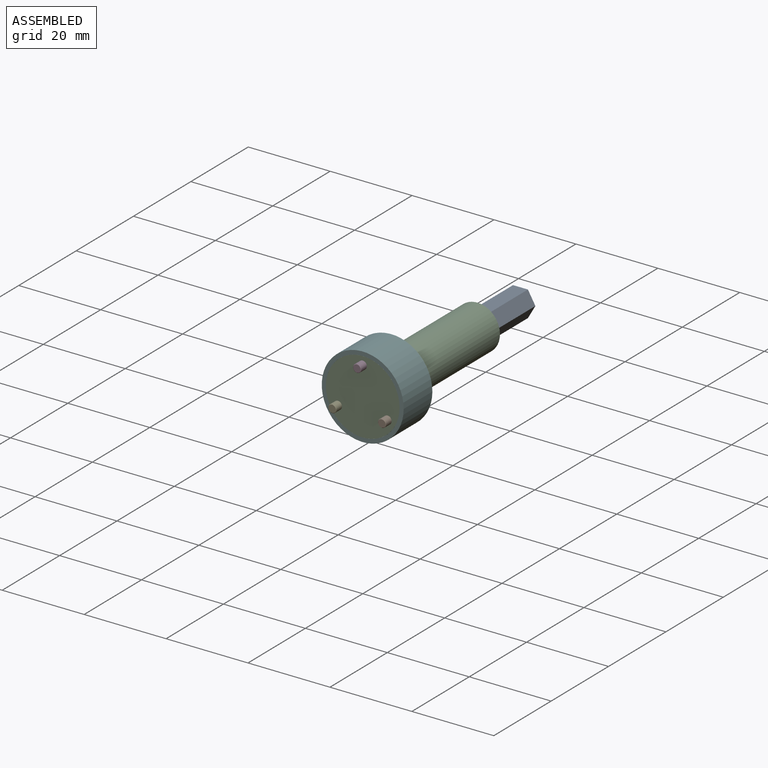
[diagram: assembled view]
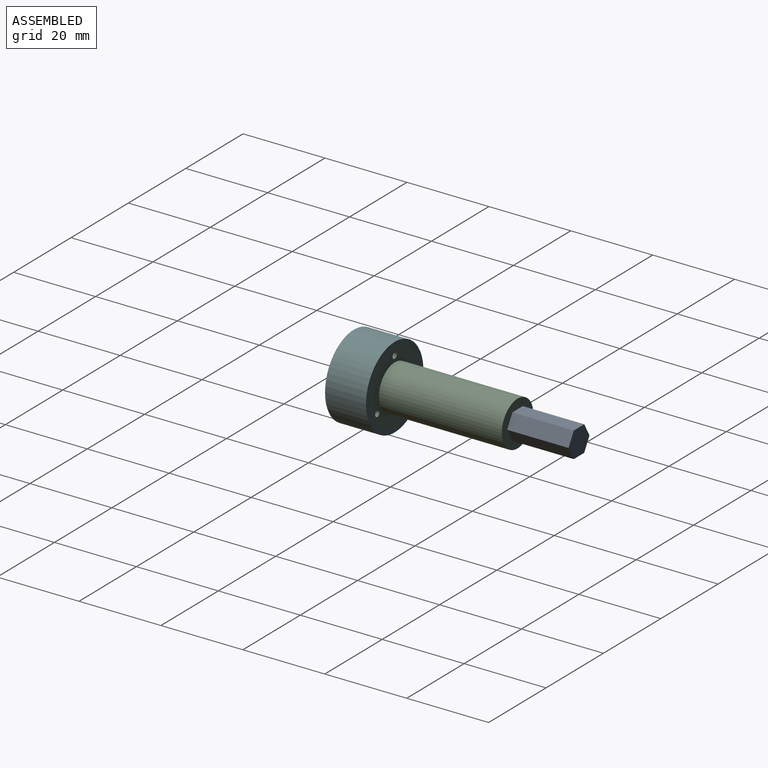
[diagram: assembled view, second angle]
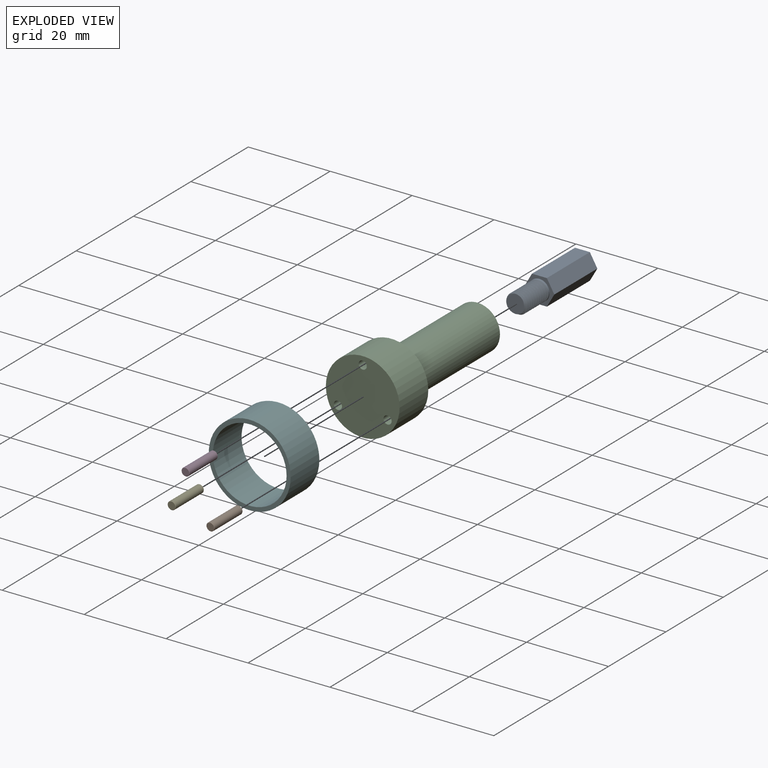
[diagram: exploded view]
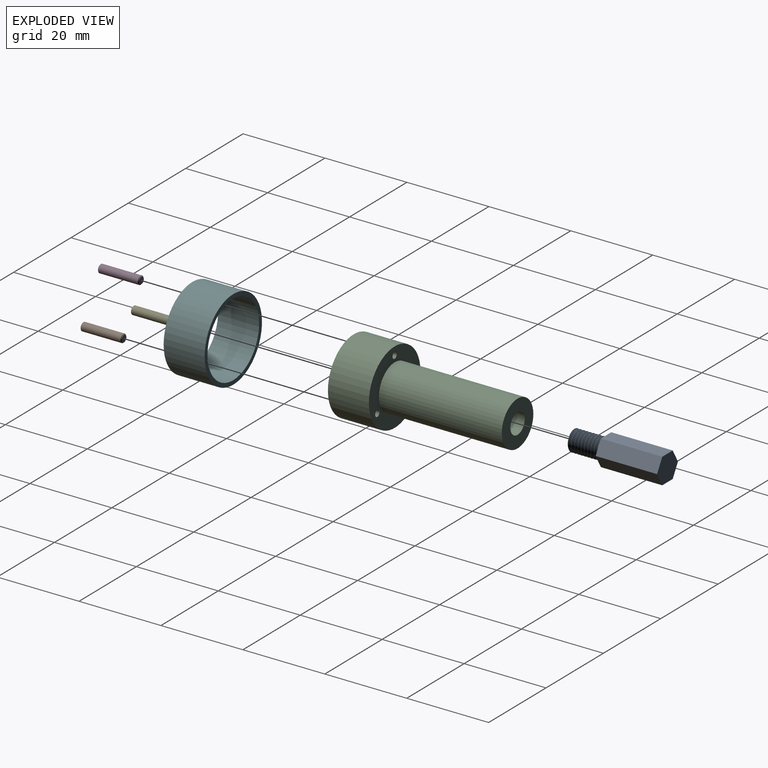
[diagram: exploded view, second angle]
ASSEMBLY  parts=6 mates=6
PART A: 13 faces, bbox 7.8x24x6.8 mm
  f0: cylinder r=2.5mm len=8mm, axis (0,1,0), area 8.5mm2, adj f7,f9,f10,f11,f12
  f1: plane 15x3.15mm, normal (0.87,0,-0.5), area 54.6mm2, adj f2,f6,f7,f8
  f2: plane 15x3.15mm, normal (0.87,0,0.5), area 54.6mm2, adj f1,f3,f7,f8
  f3: plane 15x3.64mm, normal (0,0,1), area 54.6mm2, adj f2,f4,f7,f8
  f4: plane 15x3.15mm, normal (-0.87,0,0.5), area 54.6mm2, adj f3,f5,f7,f8
  f5: plane 15x3.15mm, normal (-0.87,0,-0.5), area 54.6mm2, adj f4,f6,f7,f8
  f6: plane 15x3.64mm, normal (0,0,-1), area 54.6mm2, adj f1,f5,f7,f8
  f7: plane 7.27x6.3mm, normal (0,-1,0), area 14.7mm2, adj f0,f1,f2,f3,f4,f5,f6
  f8: plane 7.27x6.3mm, normal (0,1,0), area 34.4mm2, adj f1,f2,f3,f4,f5,f6
  f9: plane 4.94x4.92mm, normal (0,-1,0), area 15.3mm2, adj f0,f11,f12
  f10: plane 0.75x0.65mm, normal (0,0,-1), area 0.2mm2, adj f0,f11,f12
  f11: bspline ~8.38x5.77mm, area 100.2mm2, adj f0,f9,f10,f12
  f12: bspline ~8.11x5.77mm, area 95.3mm2, adj f0,f9,f10,f11
PART B: 5 faces, bbox 2x10x2 mm
  f0: cylinder r=1mm len=9.7mm, axis (0,1,0), area 60.9mm2, adj f3,f4
  f1: plane 1.8x1.8mm, normal (0,-1,0), area 2.5mm2, adj f4
  f2: plane 1.6x1.6mm, normal (0,1,0), area 2mm2, adj f3
  f3: cone r=1mm half-angle=45deg, axis (0,-1,0), area 1.6mm2, adj f0,f2
  f4: cone r=0.9mm half-angle=45deg, axis (0,1,0), area 0.8mm2, adj f0,f1
PART C: 16 faces, bbox 18x40x18 mm
  f0: cylinder r=9mm len=18mm, axis (0,1,0), area 565.5mm2, adj f1,f9
  f1: plane 18x18mm, normal (0,-1,0), area 245mm2, adj f0,f2,f4,f6
  f2: cylinder r=1mm len=8mm, axis (0,-1,0), area 50.3mm2, adj f1,f3
  f3: plane 2x2mm, normal (0,-1,0), area 1.4mm2, adj f2,f11
  f4: cylinder r=1mm len=8mm, axis (0,-1,0), area 50.3mm2, adj f1,f5
  f5: plane 2x2mm, normal (0,-1,0), area 1.4mm2, adj f4,f13
  f6: cylinder r=1mm len=8mm, axis (0,-1,0), area 50.3mm2, adj f1,f7
  f7: plane 2x2mm, normal (0,-1,0), area 1.4mm2, adj f6,f12
  f8: cylinder r=5.5mm len=30mm, axis (0,1,0), area 1036.7mm2, adj f9,f10
  f9: plane 18x18mm, normal (0,1,0), area 154.1mm2, adj f0,f8,f11,f12,f13
  f10: plane 11x11mm, normal (0,1,0), area 75.4mm2, adj f8,f14
  f11: cylinder r=0.75mm len=2mm, axis (0,-1,0), area 9.4mm2, adj f3,f9
  f12: cylinder r=0.75mm len=2mm, axis (0,-1,0), area 9.4mm2, adj f7,f9
  f13: cylinder r=0.75mm len=2mm, axis (0,-1,0), area 9.4mm2, adj f5,f9
  f14: cylinder r=2.5mm len=10mm, axis (0,1,0), area 157.1mm2, adj f10,f15
  f15: plane 5x5mm, normal (0,1,0), area 19.6mm2, adj f14
PART D: same geometry as B
PART E: same geometry as B
PART F: 4 faces, bbox 20x10x20 mm
  f0: cylinder r=9mm len=18mm, axis (0,1,0), area 565.5mm2, adj f2,f3
  f1: cylinder r=10mm len=20mm, axis (0,1,0), area 628.3mm2, adj f2,f3
  f2: plane 20x20mm, normal (0,-1,0), area 59.7mm2, adj f0,f1
  f3: plane 20x20mm, normal (0,1,0), area 59.7mm2, adj f0,f1
PLACE A t=(0.04,24.57,0.83)mm
PLACE B t=(6.1,-19.93,-2.67)mm
PLACE C t=(0.04,-2.93,0.83)mm
PLACE D t=(0.04,-19.93,7.83)mm
PLACE E t=(-6.02,-19.93,-2.67)mm
PLACE F t=(0.04,-17.93,0.83)mm
MATE fastened E.f0 <-> C.f4  axis (0,1,0) through (-6.02,-14.93,-2.67)mm
MATE parallel A.f9 <-> C.f0  axis (0,-1,0) through (-0.23,9.07,0.78)mm
MATE fastened F.f0 <-> C.f0  axis (0,1,0) through (0.04,-17.93,0.83)mm
MATE fastened D.f0 <-> C.f12  axis (0,1,0) through (0.04,-14.93,7.83)mm
MATE fastened B.f0 <-> C.f2  axis (0,1,0) through (6.1,-14.93,-2.67)mm
MATE fastened A.f0 <-> C.f0  axis (0,-1,0) through (0.04,17.07,0.83)mm
